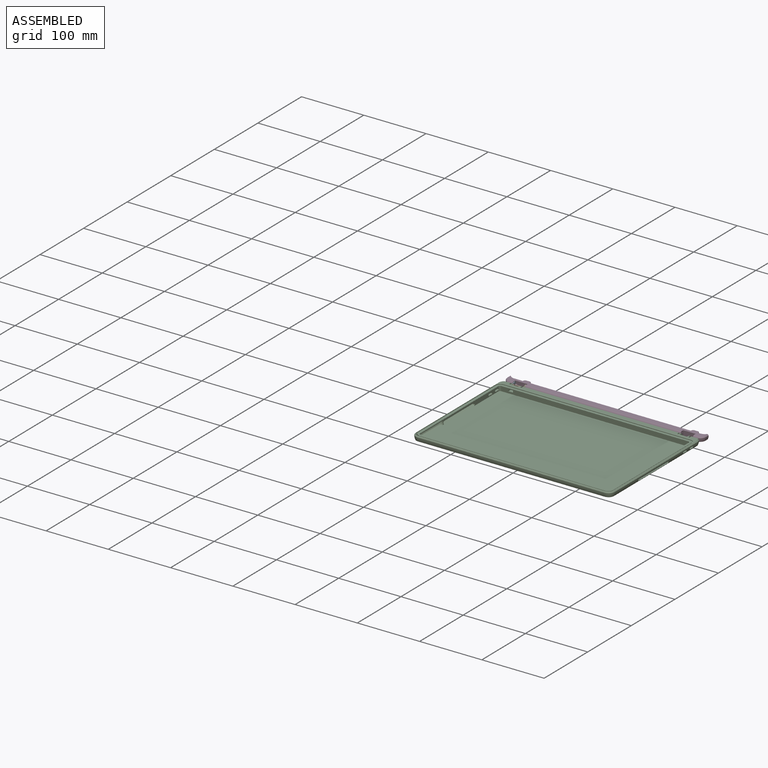
[diagram: assembled view]
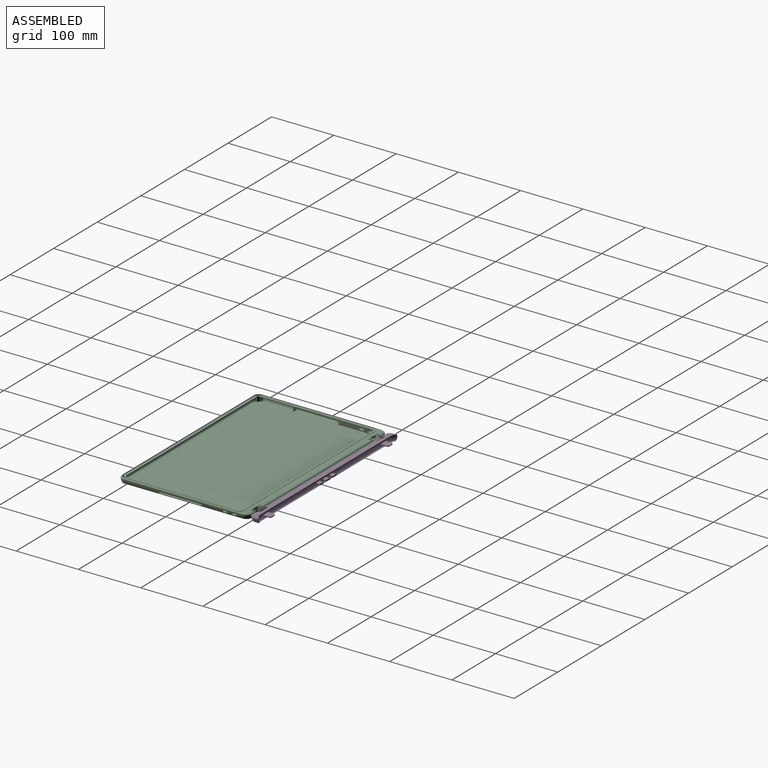
[diagram: assembled view, second angle]
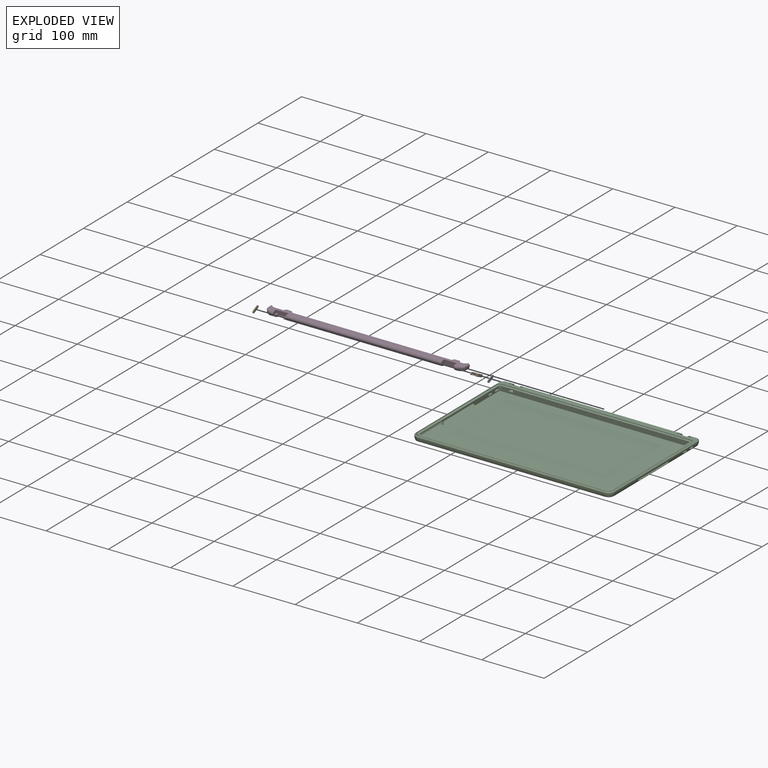
[diagram: exploded view]
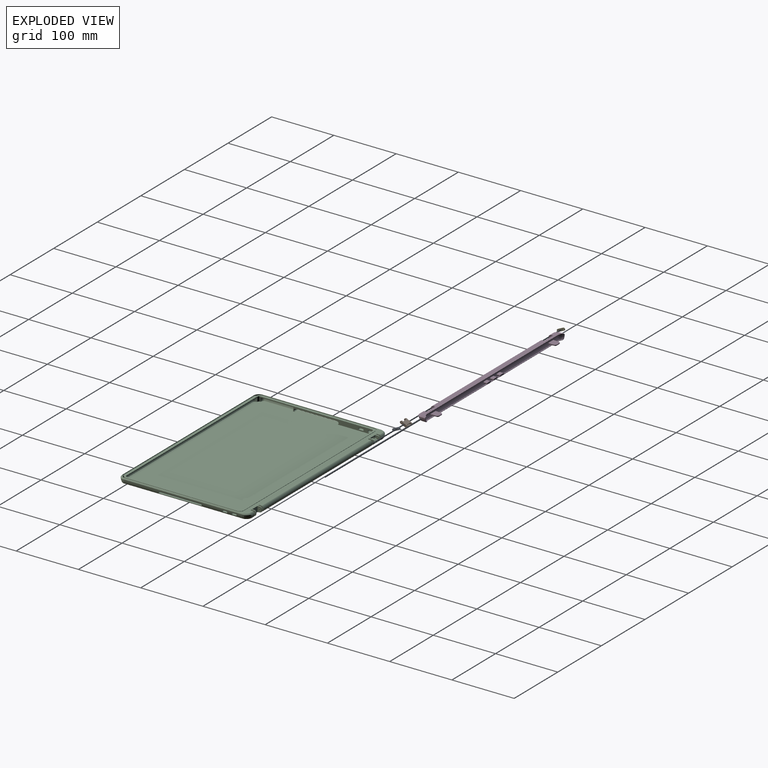
[diagram: exploded view, second angle]
ASSEMBLY  parts=5 mates=7
PART A: 8 faces, bbox 1.5x4x13.3 mm
  f0: plane 9.29x1.5mm, normal (0,1,0), area 13.9mm2, adj f1,f4,f6,f7
  f1: cylinder r=2mm len=4mm, axis (-1,0,0), area 9.4mm2, adj f0,f2,f6,f7
  f2: plane 9.29x1.5mm, normal (0,-1,0), area 13.9mm2, adj f1,f4,f6,f7
  f3: cylinder r=0.75mm len=1.5mm, axis (-1,0,0), area 7.1mm2, adj f6,f7
  f4: cylinder r=2mm len=4mm, axis (-1,0,0), area 9.4mm2, adj f0,f2,f6,f7
  f5: cylinder r=0.75mm len=1.5mm, axis (-1,0,0), area 7.1mm2, adj f6,f7
  f6: plane 13.29x4mm, normal (1,0,0), area 46.2mm2, adj f0,f1,f2,f3,f4,f5
  f7: plane 13.29x4mm, normal (-1,0,0), area 46.2mm2, adj f0,f1,f2,f3,f4,f5
PART B: 26 faces, bbox 11.5x4x13.3 mm
  f0: plane 13.29x4mm, normal (1,0,0), area 24.4mm2, adj f2,f3,f4,f5,f6,f8,f9,f10
  f1: plane 11.5x9.29mm, normal (0,1,0), area 106.8mm2, adj f2,f5,f7,f10,f15,f17
  f2: cylinder r=2mm len=11.5mm, axis (-1,0,0), area 33.1mm2, adj f0,f1,f3,f7,f17,f18,f24
  f3: plane 11.5x9.29mm, normal (0,-1,0), area 84.3mm2, adj f0,f2,f5,f7,f15,f17,f18,f21
  f4: cylinder r=0.75mm len=2mm, axis (-1,0,0), area 9.4mm2, adj f0,f7
  f5: cylinder r=2mm len=4mm, axis (-1,0,0), area 12.6mm2, adj f0,f1,f3,f7
  f6: cylinder r=0.75mm len=2mm, axis (-1,0,0), area 9.4mm2, adj f0,f7
  f7: plane 13.29x4mm, normal (-1,0,0), area 46.2mm2, adj f1,f2,f3,f4,f5,f6
  f8: plane 7.5x0.05mm, normal (0,-0.77,0.64), area 0.5mm2, adj f0,f18,f24,f25
  f9: plane 9.5x7.5mm, normal (0,-1,0), area 71.3mm2, adj f0,f18,f23,f25
  f10: plane 7.5x0.75mm, normal (0,0,-1), area 5.6mm2, adj f0,f1,f18,f23
  f11: plane 7.5x0.25mm, normal (0,0,1), area 1.9mm2, adj f0,f18,f19,f22
  f12: plane 7.5x0.25mm, normal (0,0,-1), area 1.9mm2, adj f0,f18,f20,f21
  f13: plane 7.5x6.29mm, normal (0,1,0), area 47.2mm2, adj f0,f18,f19,f20
  f14: cylinder r=0.75mm len=2mm, axis (-1,0,0), area 9.4mm2, adj f17,f18
  f15: cylinder r=2mm len=4mm, axis (-1,0,0), area 12.6mm2, adj f1,f3,f17,f18
  f16: cylinder r=0.75mm len=2mm, axis (-1,0,0), area 9.4mm2, adj f17,f18
  f17: plane 13.29x4mm, normal (1,0,0), area 46.2mm2, adj f1,f2,f3,f14,f15,f16
  f18: plane 13.29x4mm, normal (-1,0,0), area 24.4mm2, adj f2,f3,f8,f9,f10,f11,f12,f13
  f19: cylinder r=0.5mm len=7.5mm, axis (-1,0,0), area 5.9mm2, adj f0,f11,f13,f18
  f20: cylinder r=0.5mm len=7.5mm, axis (1,0,0), area 5.9mm2, adj f0,f12,f13,f18
  f21: cylinder r=0.5mm len=7.5mm, axis (-1,0,0), area 5.9mm2, adj f0,f3,f12,f18
  f22: cylinder r=0.5mm len=7.5mm, axis (1,0,0), area 5.9mm2, adj f0,f3,f11,f18
  f23: cylinder r=0.5mm len=7.5mm, axis (1,0,0), area 5.9mm2, adj f0,f9,f10,f18
  f24: cylinder r=0.5mm len=7.5mm, axis (-1,0,0), area 7.2mm2, adj f0,f2,f8,f18
  f25: cylinder r=0.5mm len=7.5mm, axis (1,0,0), area 2.6mm2, adj f0,f8,f9,f18
PART C: 185 faces, bbox 320.7x210.6x11 mm
  f0: plane 12x3.83mm, normal (0,1,0), area 31mm2, adj f2,f3,f4,f29,f181,f182,f183
  f1: plane 300x7.5mm, normal (0,-1,0), area 2227.5mm2, adj f18,f20,f21,f82,f181,f182,f183,f184
  f2: plane 12x6.02mm, normal (0,0.44,0.9), area 63.2mm2, adj f0,f3,f4,f34,f182,f183,f184
  f3: plane 6.89x6.76mm, normal (-1,0,0), area 30.7mm2, adj f0,f2,f29,f34,f173,f180
  f4: plane 6.89x6.76mm, normal (1,0,0), area 30.7mm2, adj f0,f2,f29,f34,f157,f174
  f5: plane 8.85x6.89mm, normal (1,0,0), area 47.7mm2, adj f29,f34,f39,f69,f158,f173,f180
  f6: plane 8.85x6.89mm, normal (-1,0,0), area 47.7mm2, adj f29,f31,f36,f69,f163,f164,f176
  f7: plane 8.85x6.89mm, normal (-1,0,0), area 47.7mm2, adj f29,f32,f37,f70,f170,f172,f179
  f8: plane 8.85x6.89mm, normal (1,0,0), area 47.7mm2, adj f29,f33,f38,f70,f167,f168,f178
  f9: plane 8.85x6.89mm, normal (-1,0,0), area 47.7mm2, adj f29,f33,f38,f71,f167,f168,f178
  f10: plane 8.85x6.89mm, normal (1,0,0), area 47.7mm2, adj f29,f30,f35,f71,f165,f166,f177
  f11: plane 8.85x6.89mm, normal (-1,0,0), area 47.7mm2, adj f29,f30,f35,f72,f165,f166,f177
  f12: plane 8.85x6.89mm, normal (1,0,0), area 47.7mm2, adj f29,f31,f36,f72,f163,f164,f176
  f13: plane 8.85x6.89mm, normal (1,0,0), area 47.7mm2, adj f29,f56,f57,f73,f160,f162,f175
  f14: plane 8.85x6.89mm, normal (-1,0,0), area 47.7mm2, adj f29,f34,f39,f73,f157,f158,f174
  f15: plane 180.06x8.06mm, normal (1,0,0), area 671mm2, adj f18,f21,f82,f83,f99,f100,f101,f102
  f16: cylinder r=12.75mm len=190mm, axis (0,1,0), area 978.9mm2, adj f41,f58,f60,f61,f86,f87,f88,f89
  f17: cylinder r=12.75mm len=190mm, axis (0,-1,0), area 978.9mm2, adj f46,f54,f65,f67,f90,f91,f92,f93
  f18: cylinder r=3mm len=7.5mm, axis (0,0,1), area 32.6mm2, adj f1,f15,f21,f82,f145
  f19: plane 180.07x8.07mm, normal (-1,0,0), area 671mm2, adj f20,f21,f26,f82,f85,f95,f96,f97
  f20: cylinder r=3mm len=7.5mm, axis (0,0,1), area 32.6mm2, adj f1,f19,f21,f82,f136
  f21: plane 312.5x192mm, normal (0,0,1), area 3203.3mm2, adj f1,f15,f18,f19,f20,f22,f23,f24
  f22: cylinder r=6.25mm len=0.61mm, axis (0,0,-1), area 0.3mm2, adj f21,f25,f115,f130
  f23: cylinder r=6.25mm len=0.61mm, axis (0,0,-1), area 0.3mm2, adj f21,f25,f116,f132
  f24: cylinder r=6.25mm len=0.61mm, axis (0,0,-1), area 0.3mm2, adj f21,f25,f118,f126
  f25: plane 316x195.5mm, normal (0,0,1), area 1738.5mm2, adj f22,f23,f24,f74,f75,f76,f77,f78
  f26: plane 53x3.38mm, normal (0,0,-1), area 177.1mm2, adj f19,f108,f109,f124,f151,f153
  f27: plane 300x3.38mm, normal (0,0,-1), area 1011.4mm2, adj f84,f103,f121,f123,f154,f155
  f28: plane 317x198.5mm, normal (0,0,1), area 1170.3mm2, adj f29,f47,f49,f50,f52,f53,f74,f75
  f29: plane 317.04x7.25mm, normal (0,0.05,1), area 2127.1mm2, adj f0,f3,f4,f5,f6,f7,f8,f9
  f30: cylinder r=12.75mm len=4.29mm, axis (-1,0,0), area 9.1mm2, adj f10,f11,f35,f177
  f31: cylinder r=12.75mm len=250mm, axis (-1,0,0), area 1133.6mm2, adj f6,f12,f36,f176
  f32: cylinder r=12.75mm len=5mm, axis (-1,0,0), area 22.7mm2, adj f7,f37,f58,f179
  f33: cylinder r=12.75mm len=4.29mm, axis (-1,0,0), area 9.1mm2, adj f8,f9,f38,f178
  f34: cylinder r=12.75mm len=16mm, axis (-1,0,0), area 32.6mm2, adj f2,f3,f4,f5,f14,f39,f174,f180
  f35: cylinder r=15.62mm len=5.5mm, axis (-1,0,0), area 11.2mm2, adj f10,f11,f30,f68
  f36: cylinder r=15.62mm len=250mm, axis (-1,0,0), area 1405.1mm2, adj f6,f12,f31,f68
  f37: cylinder r=15.62mm len=5.5mm, axis (-1,0,0), area 28.1mm2, adj f7,f32,f59,f68
  f38: cylinder r=15.62mm len=5.5mm, axis (-1,0,0), area 11.2mm2, adj f8,f9,f33,f68
  f39: cylinder r=15.62mm len=16mm, axis (-1,0,0), area 89.9mm2, adj f5,f14,f34,f68
  f40: plane 300x0.5mm, normal (0,-1,0), area 150mm2, adj f43,f45,f50,f63
  f41: plane 190x0.5mm, normal (1,0,0), area 94.8mm2, adj f16,f44,f45,f53
  f42: cylinder r=10mm len=9.12mm, axis (0,0,1), area 3.2mm2, adj f46,f48,f54,f175
  f43: cylinder r=10mm len=10mm, axis (0,0,-1), area 7.9mm2, adj f40,f46,f49,f65
  f44: cylinder r=10mm len=9.12mm, axis (0,0,-1), area 3.2mm2, adj f41,f51,f58,f179
  f45: cylinder r=10mm len=10mm, axis (0,0,1), area 7.9mm2, adj f40,f41,f52,f61
  f46: plane 190x0.5mm, normal (-1,0,0), area 94.6mm2, adj f17,f42,f43,f47
  f47: plane 190.01x1.51mm, normal (-0.71,0,0.71), area 403.1mm2, adj f28,f46,f48,f49
  f48: bspline ~10.59x7.73mm, area 20.6mm2, adj f29,f42,f47,f175
  f49: cone r=8.5mm half-angle=45deg, axis (0,0,-1), area 30.8mm2, adj f28,f43,f47,f50
  f50: plane 300x1.5mm, normal (0,-0.71,0.71), area 636.4mm2, adj f28,f40,f49,f52
  f51: bspline ~10.59x7.73mm, area 20.6mm2, adj f29,f44,f53,f179
  f52: cone r=8.5mm half-angle=45deg, axis (0,0,-1), area 30.8mm2, adj f28,f45,f50,f53
  f53: plane 190.01x1.51mm, normal (0.71,0,0.71), area 403.2mm2, adj f28,f41,f51,f52
  f54: revolved ~10x10mm, area 89.6mm2, adj f17,f42,f55,f56,f175
  f55: torus R=3mm, axis (0,0,1), area 51mm2, adj f54,f57,f67,f68
  f56: cylinder r=12.75mm len=5mm, axis (-1,0,0), area 22.7mm2, adj f13,f54,f57,f175
  f57: cylinder r=15.62mm len=5.5mm, axis (-1,0,0), area 28.1mm2, adj f13,f55,f56,f68
  f58: revolved ~10x10mm, area 89.6mm2, adj f16,f32,f44,f59,f179
  f59: torus R=3mm, axis (0,0,1), area 51mm2, adj f37,f58,f60,f68
  f60: cylinder r=15.62mm len=190mm, axis (0,1,0), area 1067.9mm2, adj f16,f59,f62,f68
  f61: revolved ~10x10mm, area 93.2mm2, adj f16,f45,f62,f63
  f62: torus R=3mm, axis (0,0,1), area 51mm2, adj f60,f61,f64,f68
  f63: cylinder r=12.75mm len=300mm, axis (1,0,0), area 1874.1mm2, adj f40,f61,f64,f65
  f64: cylinder r=15.62mm len=300mm, axis (1,0,0), area 1686.1mm2, adj f62,f63,f66,f68
  f65: revolved ~10x10mm, area 93.2mm2, adj f17,f43,f63,f66
  f66: torus R=3mm, axis (0,0,1), area 51mm2, adj f64,f65,f67,f68
  f67: cylinder r=15.62mm len=190mm, axis (0,-1,0), area 1067.9mm2, adj f17,f55,f66,f68
  f68: plane 306x196mm, normal (0,0,-1), area 59968.3mm2, adj f35,f36,f37,f38,f39,f55,f57,f59
  f69: plane 8.85x2mm, normal (0,1,0), area 17.7mm2, adj f5,f6,f29,f68
  f70: plane 8.85x2mm, normal (0,1,0), area 17.7mm2, adj f7,f8,f29,f68
  f71: plane 12x8.85mm, normal (0,1,0), area 106.2mm2, adj f9,f10,f29,f68
  f72: plane 8.85x2mm, normal (0,1,0), area 17.7mm2, adj f11,f12,f29,f68
  f73: plane 8.85x2mm, normal (0,1,0), area 17.7mm2, adj f13,f14,f29,f68
  f74: plane 300x1mm, normal (0,-1,0), area 300mm2, adj f25,f28,f75,f81
  f75: cylinder r=8mm len=8mm, axis (0,0,1), area 12.6mm2, adj f25,f28,f74,f76
  f76: plane 179.5x1mm, normal (1,0,0), area 179.5mm2, adj f25,f28,f75,f77
  f77: cylinder r=8mm len=8mm, axis (0,0,1), area 12.6mm2, adj f25,f28,f76,f78
  f78: plane 300x1mm, normal (0,1,0), area 300mm2, adj f25,f28,f77,f79
  f79: cylinder r=8mm len=8mm, axis (0,0,1), area 12.6mm2, adj f25,f28,f78,f80
  f80: plane 179.5x1mm, normal (-1,0,0), area 179.5mm2, adj f25,f28,f79,f81
  f81: cylinder r=8mm len=8mm, axis (0,0,1), area 12.6mm2, adj f25,f28,f74,f80
  f82: plane 306x185.5mm, normal (0,0,1), area 56755.2mm2, adj f1,f15,f18,f19,f20,f83,f85,f94
  f83: cylinder r=3mm len=7.5mm, axis (0,0,1), area 37.1mm2, adj f15,f21,f82,f84,f121,f122,f155,f156
  f84: plane 300x1.5mm, normal (0,1,0), area 450mm2, adj f21,f27,f83,f85
  f85: cylinder r=3mm len=7.5mm, axis (0,0,1), area 37.1mm2, adj f19,f21,f82,f84,f123,f124,f153,f154
  f86: cylinder r=1.25mm len=2.5mm, axis (-1,0,0), area 5.4mm2, adj f16,f87,f89,f95
  f87: plane 67.5x1.75mm, normal (0,0,-1), area 118.3mm2, adj f16,f86,f88,f97
  f88: cylinder r=1.25mm len=2.5mm, axis (-1,0,0), area 5.4mm2, adj f16,f87,f89,f96
  f89: plane 67.5x0.98mm, normal (0,0,1), area 66.1mm2, adj f16,f86,f88,f94
  f90: plane 67.5x0.98mm, normal (0,0,1), area 66.1mm2, adj f17,f91,f93,f98
  f91: cylinder r=1.25mm len=2.5mm, axis (-1,0,0), area 5.4mm2, adj f17,f90,f92,f99
  f92: plane 67.5x1.75mm, normal (0,0,-1), area 118.3mm2, adj f17,f91,f93,f101
  f93: cylinder r=1.25mm len=2.5mm, axis (-1,0,0), area 5.4mm2, adj f17,f90,f92,f100
  f94: plane 67.5x5mm, normal (-0.2,0,0.98), area 344.2mm2, adj f82,f89,f95,f96
  f95: cone r=2.25mm half-angle=11.3deg, axis (-1,0,0), area 28mm2, adj f19,f86,f94,f97
  f96: cone r=2.25mm half-angle=11.3deg, axis (-1,0,0), area 28mm2, adj f19,f88,f94,f97
  f97: plane 67.5x5mm, normal (-0.2,0,-0.98), area 344.2mm2, adj f19,f87,f95,f96
  f98: plane 67.5x5mm, normal (0.2,0,0.98), area 344.2mm2, adj f82,f90,f99,f100
  f99: cone r=2.25mm half-angle=11.3deg, axis (1,0,0), area 28mm2, adj f15,f91,f98,f101
  f100: cone r=2.25mm half-angle=11.3deg, axis (1,0,0), area 28mm2, adj f15,f93,f98,f101
  f101: plane 67.5x5mm, normal (0.2,0,-0.98), area 344.2mm2, adj f15,f92,f99,f100
  f102: plane 53x3.38mm, normal (0,0,-1), area 177.1mm2, adj f15,f110,f113,f122,f152,f156
  f103: cylinder r=1.5mm len=297.92mm, axis (1,0,0), area 765.7mm2, adj f27,f104,f154,f155
  f104: cylinder r=10.75mm len=291mm, axis (1,0,0), area 1086.6mm2, adj f103,f105,f154,f155
  f105: cylinder r=9.16mm len=299mm, axis (1,0,0), area 1101.3mm2, adj f82,f104,f154,f155
  f106: cylinder r=9.16mm len=52mm, axis (0,-1,0), area 179.2mm2, adj f82,f107,f151,f153
  f107: cylinder r=10.75mm len=44mm, axis (0,-1,0), area 164.3mm2, adj f106,f108,f151,f153
  f108: cylinder r=1.5mm len=50.92mm, axis (0,-1,0), area 123.4mm2, adj f26,f107,f151,f153
  f109: plane 2.45x0.5mm, normal (0,-1,0), area 0.8mm2, adj f19,f26,f151
  f110: cylinder r=1.5mm len=50.92mm, axis (0,-1,0), area 123.4mm2, adj f102,f111,f152,f156
  f111: cylinder r=10.75mm len=44mm, axis (0,-1,0), area 164.3mm2, adj f110,f112,f152,f156
  f112: cylinder r=9.16mm len=52mm, axis (0,-1,0), area 179.2mm2, adj f82,f111,f152,f156
  f113: plane 2.45x0.5mm, normal (0,-1,0), area 0.8mm2, adj f15,f102,f152
  f114: cylinder r=6.25mm len=6.25mm, axis (0,0,-1), area 4.9mm2, adj f21,f25,f115,f120
  f115: plane 179.5x0.5mm, normal (-1,0,0), area 89.8mm2, adj f21,f22,f25,f114
  f116: plane 300x0.5mm, normal (0,-1,0), area 150mm2, adj f21,f23,f25,f117
  f117: cylinder r=6.25mm len=0.61mm, axis (0,0,-1), area 0.3mm2, adj f21,f25,f116,f127
  f118: plane 179.5x0.5mm, normal (1,0,0), area 89.8mm2, adj f21,f24,f25,f119
  f119: cylinder r=6.25mm len=6.25mm, axis (0,0,-1), area 4.9mm2, adj f21,f25,f118,f120
  f120: plane 300x0.5mm, normal (0,1,0), area 150mm2, adj f21,f25,f114,f119
  f121: plane 2.45x0.5mm, normal (1,0,0), area 0.8mm2, adj f27,f83,f155
  f122: plane 2.45x0.5mm, normal (0,1,0), area 0.8mm2, adj f83,f102,f156
  f123: plane 2.45x0.5mm, normal (-1,0,0), area 0.8mm2, adj f27,f85,f154
  f124: plane 2.45x0.5mm, normal (0,1,0), area 0.8mm2, adj f26,f85,f153
  f125: cylinder r=7.25mm len=5.58mm, axis (0,0,1), area 37.6mm2, adj f25,f126,f127,f129
  f126: cylinder r=0.75mm len=5mm, axis (0,0,1), area 11mm2, adj f21,f24,f25,f125,f128,f129
  f127: cylinder r=0.75mm len=5mm, axis (0,0,1), area 11mm2, adj f21,f25,f117,f125,f128,f129
  f128: cylinder r=5.75mm len=5mm, axis (0,0,1), area 33.1mm2, adj f21,f126,f127,f129
  f129: plane 6.51x6.51mm, normal (0,0,1), area 13mm2, adj f125,f126,f127,f128
  f130: cylinder r=0.75mm len=5mm, axis (0,0,1), area 11mm2, adj f21,f22,f25,f131,f133,f134
  f131: cylinder r=7.25mm len=5.58mm, axis (0,0,1), area 37.6mm2, adj f25,f130,f132,f134
  f132: cylinder r=0.75mm len=5mm, axis (0,0,1), area 11mm2, adj f21,f23,f25,f131,f133,f134
  f133: cylinder r=5.75mm len=5mm, axis (0,0,1), area 33.1mm2, adj f21,f130,f132,f134
  f134: plane 6.51x6.51mm, normal (0,0,1), area 13mm2, adj f130,f131,f132,f133
  f135: cylinder r=1.3mm len=6.89mm, axis (-1,0,0), area 26.8mm2, adj f16,f19,f137,f138
  f136: cylinder r=1.3mm len=6.89mm, axis (-1,0,0), area 26.8mm2, adj f16,f20,f137,f138
  f137: plane 6.25x5.8mm, normal (0,0,1), area 36.3mm2, adj f16,f19,f135,f136
  f138: plane 6.89x5.8mm, normal (0,0,-1), area 39.9mm2, adj f16,f19,f135,f136
  f139: plane 6.25x5.8mm, normal (0,0,1), area 36.3mm2, adj f16,f19,f140,f142
  f140: cylinder r=1.3mm len=6.89mm, axis (-1,0,0), area 26.8mm2, adj f16,f19,f139,f141
  f141: plane 6.89x5.8mm, normal (0,0,-1), area 39.9mm2, adj f16,f19,f140,f142
  f142: cylinder r=1.3mm len=6.89mm, axis (-1,0,0), area 26.8mm2, adj f16,f19,f139,f141
  f143: cylinder r=1.3mm len=6.89mm, axis (-1,0,0), area 26.8mm2, adj f15,f17,f144,f146
  f144: plane 6.89x5.8mm, normal (0,0,-1), area 39.9mm2, adj f15,f17,f143,f145
  f145: cylinder r=1.3mm len=6.89mm, axis (-1,0,0), area 26.8mm2, adj f17,f18,f144,f146
  f146: plane 6.25x5.8mm, normal (0,0,1), area 36.3mm2, adj f15,f17,f143,f145
  f147: cylinder r=1.3mm len=6.89mm, axis (-1,0,0), area 26.8mm2, adj f15,f17,f148,f150
  f148: plane 6.89x5.8mm, normal (0,0,-1), area 39.9mm2, adj f15,f17,f147,f149
  f149: cylinder r=1.3mm len=6.89mm, axis (-1,0,0), area 26.8mm2, adj f15,f17,f148,f150
  f150: plane 6.25x5.8mm, normal (0,0,1), area 36.3mm2, adj f15,f17,f147,f149
  f151: torus R=6.25mm, axis (0,-1,0), area 38.1mm2, adj f19,f26,f106,f107,f108,f109
  f152: torus R=6.25mm, axis (0,1,0), area 38.1mm2, adj f15,f102,f110,f111,f112,f113
  f153: torus R=6.25mm, axis (0,-1,0), area 37.2mm2, adj f26,f82,f85,f106,f107,f108,f124
  f154: torus R=6.25mm, axis (-1,0,0), area 37.2mm2, adj f27,f82,f85,f103,f104,f105,f123
  f155: torus R=6.25mm, axis (-1,0,0), area 37.2mm2, adj f27,f82,f83,f103,f104,f105,f121
  f156: torus R=6.25mm, axis (0,1,0), area 37.2mm2, adj f82,f83,f102,f110,f111,f112,f122
  f157: cylinder r=0.75mm len=2mm, axis (1,0,0), area 9.4mm2, adj f4,f14
  f158: cylinder r=0.75mm len=16mm, axis (1,0,0), area 75.4mm2, adj f5,f14
  f159: plane 1.5x1.5mm, normal (1,0,0), area 1.8mm2, adj f160
  f160: cylinder r=0.75mm len=2mm, axis (1,0,0), area 9.4mm2, adj f13,f159
  f161: plane 1.5x1.5mm, normal (1,0,0), area 1.8mm2, adj f162
  f162: cylinder r=0.75mm len=2mm, axis (1,0,0), area 9.4mm2, adj f13,f161
  f163: cylinder r=0.75mm len=250mm, axis (1,0,0), area 1178.1mm2, adj f6,f12
  f164: cylinder r=0.75mm len=250mm, axis (1,0,0), area 1178.1mm2, adj f6,f12
  f165: cylinder r=0.75mm len=2mm, axis (1,0,0), area 9.4mm2, adj f10,f11
  f166: cylinder r=0.75mm len=2mm, axis (1,0,0), area 9.4mm2, adj f10,f11
  f167: cylinder r=0.75mm len=2mm, axis (1,0,0), area 9.4mm2, adj f8,f9
  f168: cylinder r=0.75mm len=2mm, axis (1,0,0), area 9.4mm2, adj f8,f9
  f169: plane 1.5x1.5mm, normal (-1,0,0), area 1.8mm2, adj f170
  f170: cylinder r=0.75mm len=2mm, axis (1,0,0), area 9.4mm2, adj f7,f169
  f171: plane 1.5x1.5mm, normal (-1,0,0), area 1.8mm2, adj f172
  f172: cylinder r=0.75mm len=2mm, axis (1,0,0), area 9.4mm2, adj f7,f171
  f173: cylinder r=0.75mm len=2mm, axis (1,0,0), area 9.4mm2, adj f3,f5
  f174: cylinder r=5mm len=3.35mm, axis (-1,0,0), area 8.9mm2, adj f4,f14,f29,f34
  f175: cylinder r=5mm len=9.68mm, axis (-1,0,0), area 38.1mm2, adj f13,f29,f42,f48,f54,f56
  f176: cylinder r=5mm len=250mm, axis (-1,0,0), area 1113.6mm2, adj f6,f12,f29,f31
  f177: cylinder r=5mm len=3.35mm, axis (-1,0,0), area 8.9mm2, adj f10,f11,f29,f30
  f178: cylinder r=5mm len=3.35mm, axis (-1,0,0), area 8.9mm2, adj f8,f9,f29,f33
  f179: cylinder r=5mm len=9.68mm, axis (-1,0,0), area 38.1mm2, adj f7,f29,f32,f44,f51,f58
  f180: cylinder r=5mm len=3.35mm, axis (-1,0,0), area 8.9mm2, adj f3,f5,f29,f34
  f181: plane 10.5x7.5mm, normal (0,0,-1), area 78.7mm2, adj f0,f1,f182,f183
  f182: plane 12.55x3mm, normal (1,0,0), area 32.5mm2, adj f0,f1,f2,f181,f184
  f183: plane 12.55x3mm, normal (-1,0,0), area 32.5mm2, adj f0,f1,f2,f181,f184
  f184: plane 12.55x7.5mm, normal (0,0,1), area 94.1mm2, adj f1,f2,f182,f183
PART D: 101 faces, bbox 320.1x22.6x8.6 mm
  f0: plane 20x6.63mm, normal (0,1,0), area 117.5mm2, adj f1,f4,f6,f89,f92,f97,f98,f100
  f1: plane 6.87x6.21mm, normal (1,0,0), area 30mm2, adj f0,f6,f7,f81,f86,f89,f90,f91
  f2: plane 8.5x6.87mm, normal (-1,0,0), area 46.1mm2, adj f6,f30,f38,f48,f82,f84,f87
  f3: plane 8.5x6.87mm, normal (1,0,0), area 46.1mm2, adj f6,f8,f9,f48,f78,f79,f88
  f4: plane 6.87x6.21mm, normal (-1,0,0), area 30mm2, adj f0,f6,f8,f78,f88,f95,f96,f97
  f5: cylinder r=12.85mm len=300mm, axis (1,0,0), area 1638mm2, adj f19,f23,f42,f43,f49,f50,f51,f52
  f6: plane 317x12.44mm, normal (0,0,-1), area 2538.2mm2, adj f0,f1,f2,f3,f4,f14,f16,f18
  f7: cylinder r=12.75mm len=9mm, axis (-1,0,0), area 27.6mm2, adj f1,f9,f36,f86,f91,f92
  f8: cylinder r=12.75mm len=254mm, axis (-1,0,0), area 1101.3mm2, adj f3,f4,f9,f88,f95,f98
  f9: cylinder r=15.62mm len=275mm, axis (-1,0,0), area 1493.3mm2, adj f3,f7,f8,f37,f40,f92,f98,f99
  f10: cylinder r=12.75mm len=5.5mm, axis (0,-1,0), area 31.2mm2, adj f11,f17,f36,f46
  f11: cylinder r=15.62mm len=5.5mm, axis (0,-1,0), area 28.4mm2, adj f10,f22,f37,f40,f46
  f12: cylinder r=12.75mm len=5.5mm, axis (0,1,0), area 31.2mm2, adj f13,f15,f35,f47
  f13: cylinder r=15.62mm len=5.5mm, axis (0,1,0), area 28.4mm2, adj f12,f21,f39,f40,f47
  f14: plane 5.42x1.5mm, normal (0.71,0,-0.71), area 11.5mm2, adj f6,f15,f34,f47
  f15: plane 5.42x0.5mm, normal (1,0,0), area 2.7mm2, adj f12,f14,f32,f47
  f16: plane 5.42x1.5mm, normal (-0.71,0,-0.71), area 11.5mm2, adj f6,f17,f33,f46
  f17: plane 5.42x0.5mm, normal (-1,0,0), area 2.7mm2, adj f10,f16,f31,f46
  f18: cylinder r=9.04mm len=7.48mm, axis (0,0,-1), area 3.5mm2, adj f6,f29,f45,f46
  f19: revolved ~8.73x5.79mm, area 56.2mm2, adj f5,f20,f26,f47
  f20: cylinder r=10.1mm len=8.73mm, axis (0,0,-1), area 5.7mm2, adj f19,f28,f42,f47
  f21: cylinder r=7.3mm len=5.24mm, axis (0,0,-1), area 2.7mm2, adj f13,f26,f40,f44,f47
  f22: cylinder r=7.3mm len=5.24mm, axis (0,0,-1), area 2.7mm2, adj f11,f25,f40,f44,f46
  f23: revolved ~8.73x5.79mm, area 56.2mm2, adj f5,f24,f25,f46
  f24: cylinder r=10.1mm len=8.73mm, axis (0,0,-1), area 5.7mm2, adj f23,f29,f42,f46
  f25: torus R=3mm, axis (0,0,-1), area 9.2mm2, adj f22,f23,f43,f46
  f26: torus R=3mm, axis (0,0,-1), area 9.2mm2, adj f19,f21,f43,f47
  f27: cylinder r=9.04mm len=7.48mm, axis (0,0,-1), area 3.5mm2, adj f6,f28,f45,f47
  f28: cone r=9.04mm half-angle=45deg, axis (0,0,1), area 14.5mm2, adj f20,f27,f41,f47
  f29: cone r=9.04mm half-angle=45deg, axis (0,0,1), area 14.5mm2, adj f18,f24,f41,f46
  f30: cylinder r=12.75mm len=5mm, axis (-1,0,0), area 21.9mm2, adj f2,f35,f38,f87
  f31: cylinder r=10mm len=9.3mm, axis (0,0,1), area 5.8mm2, adj f17,f33,f36,f86
  f32: cylinder r=10mm len=9.3mm, axis (0,0,-1), area 5.8mm2, adj f15,f34,f35,f87
  f33: cone r=8.5mm half-angle=45deg, axis (0,0,1), area 21.2mm2, adj f6,f16,f31,f86
  f34: cone r=8.5mm half-angle=45deg, axis (0,0,1), area 21.2mm2, adj f6,f14,f32,f87
  f35: revolved ~19.99x19.99mm, area 273.7mm2, adj f12,f30,f32,f39,f87
  f36: revolved ~10x10mm, area 82.2mm2, adj f7,f10,f31,f37,f86
  f37: torus R=3mm, axis (0,0,1), area 51mm2, adj f9,f11,f36,f40
  f38: cylinder r=15.62mm len=5.5mm, axis (-1,0,0), area 28.1mm2, adj f2,f30,f39,f40
  f39: torus R=3mm, axis (0,0,1), area 51mm2, adj f13,f35,f38,f40
  f40: plane 306x6.84mm, normal (0,0,1), area 1893.9mm2, adj f9,f11,f13,f21,f22,f37,f38,f39
  f41: plane 300x1.06mm, normal (0,-0.71,0.71), area 449.1mm2, adj f28,f29,f42,f45
  f42: plane 300x0.54mm, normal (0,-1,0), area 163mm2, adj f5,f20,f24,f41
  f43: cylinder r=15.72mm len=300mm, axis (1,0,0), area 400.8mm2, adj f5,f25,f26,f44
  f44: plane 300x0.5mm, normal (0,-1,0), area 150mm2, adj f21,f22,f40,f43
  f45: plane 300x0.4mm, normal (0,-1,0), area 120mm2, adj f6,f18,f27,f41
  f46: plane 8.44x4.86mm, normal (0,-1,0), area 11.1mm2, adj f6,f10,f11,f16,f17,f18,f22,f23
  f47: plane 8.44x4.86mm, normal (0,-1,0), area 11.1mm2, adj f6,f12,f13,f14,f15,f19,f20,f21
  f48: plane 20x8.5mm, normal (0,1,0), area 170mm2, adj f2,f3,f6,f40
  f49: plane 5.8x5.29mm, normal (0,0,1), area 30.7mm2, adj f5,f50,f52,f53
  f50: cylinder r=1.3mm len=5.97mm, axis (0,1,0), area 23mm2, adj f5,f49,f51,f53
  f51: plane 5.97x5.8mm, normal (0,0,-1), area 34.6mm2, adj f5,f50,f52,f53
  f52: cylinder r=1.3mm len=5.97mm, axis (0,1,0), area 23mm2, adj f5,f49,f51,f53
  f53: plane 8.4x2.6mm, normal (0,-1,0), area 20.4mm2, adj f49,f50,f51,f52
  f54: plane 5.8x5.29mm, normal (0,0,1), area 30.7mm2, adj f5,f55,f57,f58
  f55: cylinder r=1.3mm len=5.97mm, axis (0,1,0), area 23mm2, adj f5,f54,f56,f58
  f56: plane 5.97x5.8mm, normal (0,0,-1), area 34.6mm2, adj f5,f55,f57,f58
  f57: cylinder r=1.3mm len=5.97mm, axis (0,1,0), area 23mm2, adj f5,f54,f56,f58
  f58: plane 8.4x2.6mm, normal (0,-1,0), area 20.4mm2, adj f54,f55,f56,f57
  f59: cylinder r=1.3mm len=5.97mm, axis (0,1,0), area 23mm2, adj f5,f60,f62,f63
  f60: plane 5.97x5.8mm, normal (0,0,-1), area 34.6mm2, adj f5,f59,f61,f63
  f61: cylinder r=1.3mm len=5.97mm, axis (0,1,0), area 23mm2, adj f5,f60,f62,f63
  f62: plane 5.8x5.29mm, normal (0,0,1), area 30.7mm2, adj f5,f59,f61,f63
  f63: plane 8.4x2.6mm, normal (0,-1,0), area 20.4mm2, adj f59,f60,f61,f62
  f64: plane 12x11.45mm, normal (0,-0.03,1), area 128.4mm2, adj f5,f65,f67,f68,f76,f77
  f65: plane 9.02x1.98mm, normal (1,-0.03,0), area 14.7mm2, adj f5,f64,f66,f76
  f66: plane 12.04x11.96mm, normal (0,-0.03,-1), area 134.5mm2, adj f5,f65,f67,f68,f76,f77
  f67: plane 9.02x1.98mm, normal (-1,-0.03,0), area 14.7mm2, adj f5,f64,f66,f77
  f68: plane 5.37x1.16mm, normal (0,-1,0), area 6.2mm2, adj f64,f66,f76,f77
  f69: plane 12.04x11.96mm, normal (0,-0.03,-1), area 134.5mm2, adj f5,f70,f72,f73,f74,f75
  f70: plane 9.02x1.98mm, normal (-1,-0.03,0), area 14.7mm2, adj f5,f69,f71,f74
  f71: plane 12x11.45mm, normal (0,-0.03,1), area 128.4mm2, adj f5,f70,f72,f73,f74,f75
  f72: plane 9.02x1.98mm, normal (1,-0.03,0), area 14.7mm2, adj f5,f69,f71,f75
  f73: plane 5.37x1.16mm, normal (0,-1,0), area 6.2mm2, adj f69,f71,f74,f75
  f74: cylinder r=3mm len=3mm, axis (0,0,1), area 5.8mm2, adj f69,f70,f71,f73
  f75: cylinder r=3mm len=3mm, axis (0,0,1), area 5.8mm2, adj f69,f71,f72,f73
  f76: cylinder r=3mm len=3mm, axis (0,0,1), area 5.8mm2, adj f64,f65,f66,f68
  f77: cylinder r=3mm len=3mm, axis (0,0,1), area 5.8mm2, adj f64,f66,f67,f68
  f78: cylinder r=0.75mm len=250mm, axis (1,0,0), area 1178.1mm2, adj f3,f4
  f79: cylinder r=0.75mm len=254mm, axis (1,0,0), area 1196.9mm2, adj f3,f98
  f80: plane 1.5x1.5mm, normal (1,0,0), area 1.8mm2, adj f81
  f81: cylinder r=0.75mm len=2mm, axis (1,0,0), area 9.4mm2, adj f1,f80
  f82: cylinder r=0.75mm len=2mm, axis (1,0,0), area 9.4mm2, adj f2,f83
  f83: plane 1.5x1.5mm, normal (-1,0,0), area 1.8mm2, adj f82
  f84: cylinder r=0.75mm len=2mm, axis (1,0,0), area 9.4mm2, adj f2,f85
  f85: plane 1.5x1.5mm, normal (-1,0,0), area 1.8mm2, adj f84
  f86: cylinder r=5mm len=9.79mm, axis (-1,0,0), area 39.6mm2, adj f1,f6,f7,f31,f33,f36
  f87: cylinder r=5mm len=9.79mm, axis (-1,0,0), area 39.6mm2, adj f2,f6,f30,f32,f34,f35
  f88: cylinder r=5mm len=250mm, axis (-1,0,0), area 1140.2mm2, adj f3,f4,f6,f8
  f89: plane 4x2.78mm, normal (0,0,-1), area 11.1mm2, adj f0,f1,f90,f92
  f90: cylinder r=1.5mm len=4mm, axis (-1,0,0), area 2.6mm2, adj f1,f89,f91,f92
  f91: plane 4x2.69mm, normal (0,0.44,-0.9), area 12mm2, adj f1,f7,f90,f92
  f92: plane 6.1x3.7mm, normal (1,0,0), area 14.6mm2, adj f0,f7,f9,f89,f90,f91,f94,f99
  f93: plane 1.5x1.5mm, normal (1,0,0), area 1.8mm2, adj f94
  f94: cylinder r=0.75mm len=6mm, axis (1,0,0), area 28.3mm2, adj f92,f93
  f95: plane 4x2.69mm, normal (0,0.44,-0.9), area 12mm2, adj f4,f8,f96,f98
  f96: cylinder r=1.5mm len=4mm, axis (1,0,0), area 2.6mm2, adj f4,f95,f97,f98
  f97: plane 4x2.78mm, normal (0,0,-1), area 11.1mm2, adj f0,f4,f96,f98
  f98: plane 6.1x3.7mm, normal (-1,0,0), area 14.6mm2, adj f0,f8,f9,f79,f95,f96,f97,f99
  f99: plane 12x0.5mm, normal (0,1,0), area 6mm2, adj f9,f92,f98,f100
  f100: plane 12x1.32mm, normal (0,0.72,-0.69), area 21.9mm2, adj f0,f92,f98,f99
PART E: same geometry as A
PLACE A rot(axis=(-1,0,0),64.5deg) t=(-159.75,100.36,-2.44)mm
PLACE B rot(axis=(-1,0,0),115.5deg) t=(-159.75,93.09,5.41)mm
PLACE C t=(-160,105,0)mm
PLACE D rot(axis=(1,0,0),180deg) t=(-160,104.89,18.21)mm
PLACE E rot(axis=(-1,0,0),64.5deg) t=(-141.75,100.36,-2.44)mm
MATE revolute E.f4 <-> C.f158  axis (1,0,0) through (-125.25,100.75,2.46)mm
MATE revolute D.f79 <-> B.f2  axis (-1,0,0) through (-129,109.14,2.46)mm
MATE revolute D.f78 <-> E.f1  axis (-1,0,0) through (-125,109.14,6.46)mm
MATE revolute D.f78 <-> A.f1  axis (1,0,0) through (-145,109.14,6.46)mm
MATE revolute C.f157 <-> B.f4  axis (1,0,0) through (-129,100.75,6.46)mm
MATE revolute A.f4 <-> C.f158  axis (-1,0,0) through (-144.75,100.75,2.46)mm
MATE parallel D.f17 <-> C.f46  axis (-1,0,0) through (-160,117.59,6.96)mm
